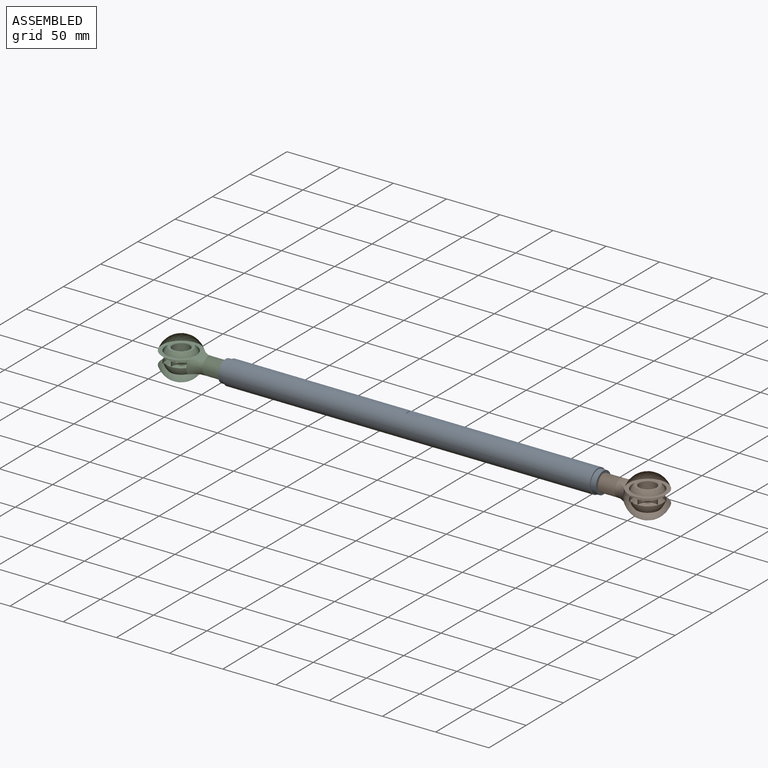
[diagram: assembled view]
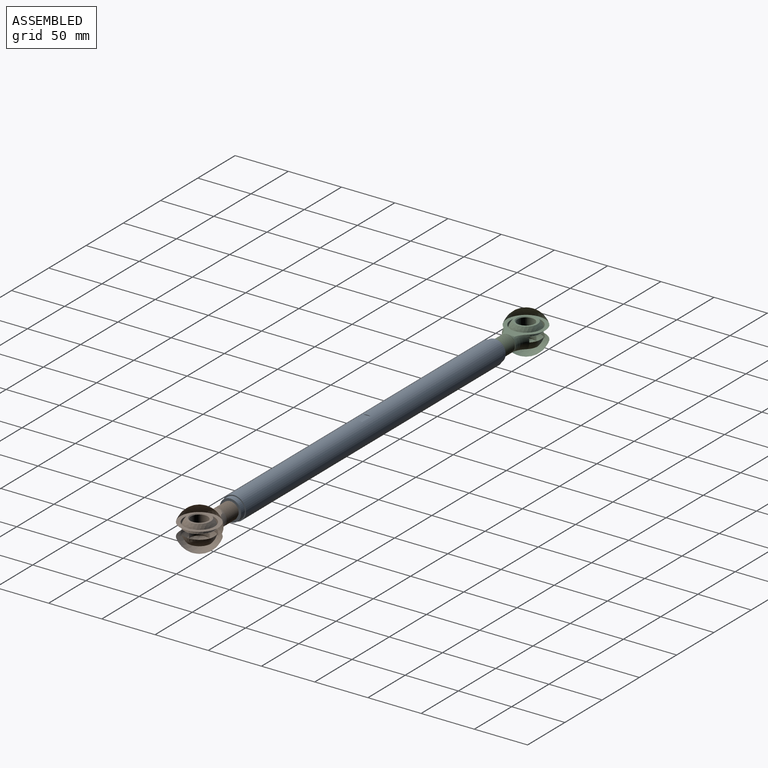
[diagram: assembled view, second angle]
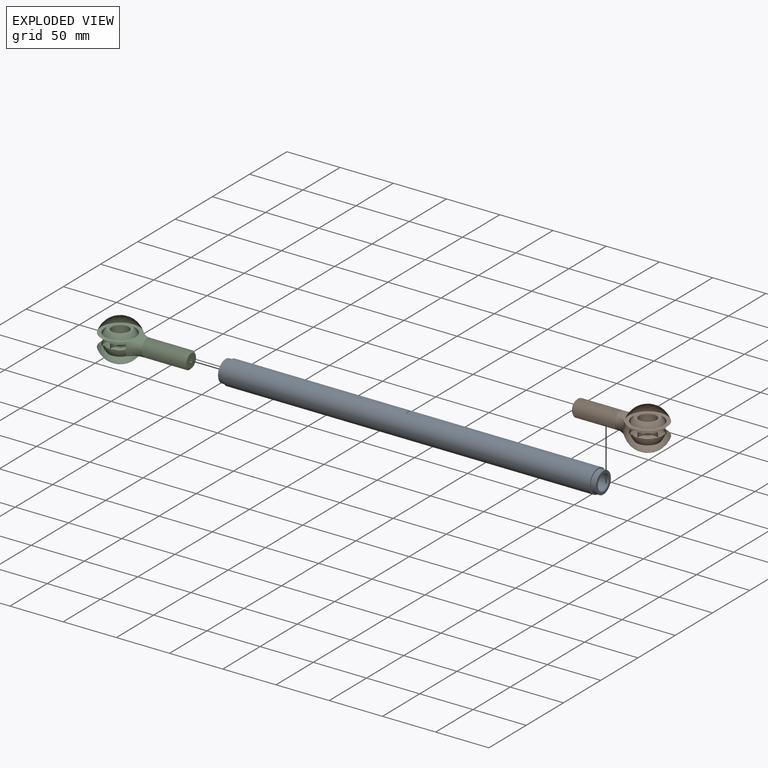
[diagram: exploded view]
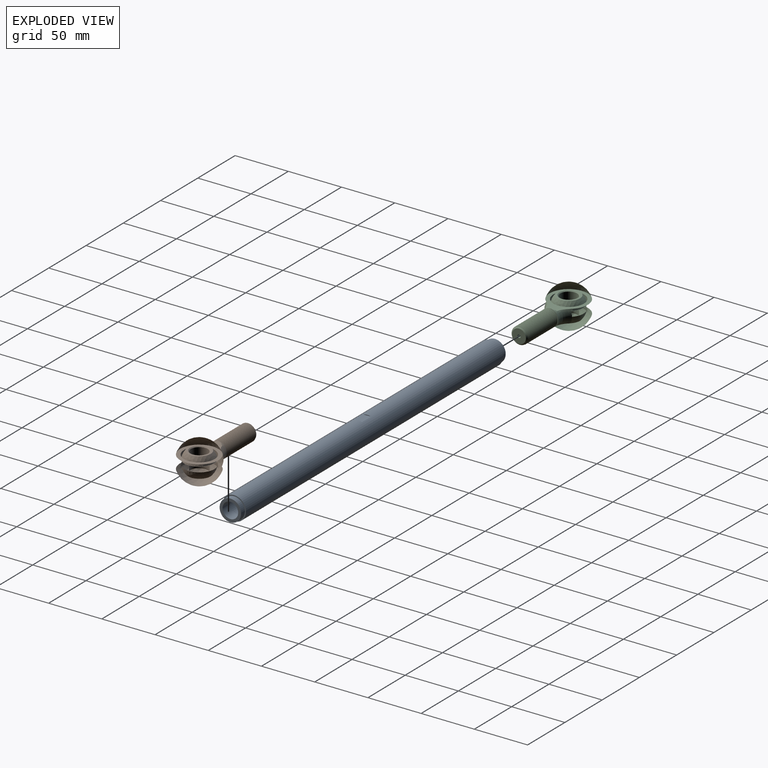
[diagram: exploded view, second angle]
ASSEMBLY  parts=3 mates=6
PART A: 18 faces, bbox 355x22.2x22.2 mm
  f0: cylinder r=11.11mm len=345mm, axis (-1,0,0), area 23910.6mm2, adj f2,f3,f12,f13,f14,f15,f16,f17
  f1: cylinder r=9.11mm len=335mm, axis (-1,0,0), area 19180.6mm2, adj f6,f10
  f2: plane 22.23x22.23mm, normal (1,0,0), area 66.7mm2, adj f0,f5
  f3: plane 22.23x22.23mm, normal (-1,0,0), area 66.7mm2, adj f0,f9
  f4: plane 20.23x20.23mm, normal (1,0,0), area 151.9mm2, adj f5,f7
  f5: cylinder r=10.11mm len=20.23mm, axis (-1,0,0), area 317.7mm2, adj f2,f4
  f6: plane 18.23x18.23mm, normal (-1,0,0), area 91.5mm2, adj f1,f7
  f7: cylinder r=7.34mm len=14.68mm, axis (1,0,0), area 461.3mm2, adj f4,f6
  f8: plane 20.23x20.23mm, normal (-1,0,0), area 151.9mm2, adj f9,f11
  f9: cylinder r=10.11mm len=20.23mm, axis (1,0,0), area 317.7mm2, adj f3,f8
  f10: plane 18.23x18.23mm, normal (1,0,0), area 91.5mm2, adj f1,f11
  f11: cylinder r=7.34mm len=14.68mm, axis (-1,0,0), area 461.3mm2, adj f8,f10
  f12: plane 7.28x0.61mm, normal (1,0,0), area 3mm2, adj f0,f14
  f13: plane 7.28x0.61mm, normal (-1,0,0), area 3mm2, adj f0,f14
  f14: plane 12x7.28mm, normal (0,0,-1), area 87.3mm2, adj f0,f12,f13
  f15: plane 7.28x0.61mm, normal (1,0,0), area 3mm2, adj f0,f16
  f16: plane 12x7.28mm, normal (0,0,1), area 87.3mm2, adj f0,f15,f17
  f17: plane 7.28x0.61mm, normal (-1,0,0), area 3mm2, adj f0,f16
PART B: 86 faces, bbox 74.1x108.1x74.1 mm
  f0: cylinder r=14.43mm len=28.86mm, axis (0,0,1), area 331.1mm2, adj f1,f2
  f1: plane 41.2x36.29mm, normal (0,0,-1), area 441.4mm2, adj f0,f3,f4,f5,f6
  f2: plane 35.07x35.07mm, normal (0,0,-1), area 32.5mm2, adj f0,f7
  f3: sphere r=19.05mm, area 3418.5mm2, adj f1,f4,f6,f8,f9
  f4: torus R=23.47mm, axis (0,-1,0), area 92.7mm2, adj f1,f3,f5,f8,f10,f11
  f5: plane 11.68x3.5mm, normal (0,0.59,-0.81), area 21.6mm2, adj f1,f4,f6
  f6: torus R=23.47mm, axis (0,-1,0), area 185.4mm2, adj f1,f3,f5,f9,f10,f12
  f7: sphere r=14.29mm, area 649.9mm2, adj f2,f13
  f8: torus R=23.47mm, axis (0,-1,0), area 92.7mm2, adj f3,f4,f9,f10,f12
  f9: plane 41.19x36.28mm, normal (0,0,1), area 441.4mm2, adj f3,f6,f8,f12,f14
  f10: plane 16.47x16.47mm, normal (0,-1,0), area 21.8mm2, adj f4,f6,f8,f15,f16,f17
  f11: cylinder r=7.94mm len=7.85mm, axis (0,1,0), area 1.4mm2, adj f4,f15,f17,f18
  f12: plane 11.68x3.5mm, normal (0,0.59,0.81), area 21.6mm2, adj f6,f8,f9
  f13: plane 21.3x21.3mm, normal (0,0,-1), area 116.8mm2, adj f7,f19
  f14: cylinder r=14.43mm len=28.86mm, axis (0,0,1), area 331.1mm2, adj f9,f20
  f15: bspline ~41.48x15.88mm, area 1421.3mm2, adj f10,f11,f16,f18,f21,f22,f23,f24
  f16: cylinder r=7.02mm len=40.78mm, axis (0,-1,0), area 224.7mm2, adj f10,f15,f17,f21
  f17: bspline ~41.84x15.87mm, area 1394.1mm2, adj f10,f11,f16,f18,f21,f22,f23,f24
  f18: cylinder r=7.94mm len=15.88mm, axis (0,1,0), area 4.4mm2, adj f11,f15,f17,f22
  f19: cone r=0mm half-angle=45deg, axis (0,0,-1), area 58.8mm2, adj f13,f79
  f20: plane 35.07x35.07mm, normal (0,0,1), area 32.5mm2, adj f14,f80
  f21: cone r=0mm half-angle=45deg, axis (0,1,0), area 33.4mm2, adj f15,f16,f17,f77,f78,f81
  f22: cylinder r=7.94mm len=15.88mm, axis (0,1,0), area 4.4mm2, adj f15,f17,f18,f23
  f23: cylinder r=7.94mm len=15.88mm, axis (0,1,0), area 4.4mm2, adj f15,f17,f22,f24
  f24: cylinder r=7.94mm len=15.88mm, axis (0,1,0), area 4.4mm2, adj f15,f17,f23,f25
  f25: cylinder r=7.94mm len=15.88mm, axis (0,1,0), area 4.4mm2, adj f15,f17,f24,f26
  f26: cylinder r=7.94mm len=15.88mm, axis (0,1,0), area 4.4mm2, adj f15,f17,f25,f27
  f27: cylinder r=7.94mm len=15.88mm, axis (0,1,0), area 4.4mm2, adj f15,f17,f26,f28
  f28: cylinder r=7.94mm len=15.88mm, axis (0,1,0), area 4.4mm2, adj f15,f17,f27,f29
  f29: cylinder r=7.94mm len=15.88mm, axis (0,1,0), area 4.4mm2, adj f15,f17,f28,f30
  f30: cylinder r=7.94mm len=15.88mm, axis (0,1,0), area 4.4mm2, adj f15,f17,f29,f31
  f31: cylinder r=7.94mm len=15.88mm, axis (0,1,0), area 4.4mm2, adj f15,f17,f30,f32
  f32: cylinder r=7.94mm len=15.88mm, axis (0,1,0), area 4.4mm2, adj f15,f17,f31,f33
  f33: cylinder r=7.94mm len=15.88mm, axis (0,1,0), area 4.4mm2, adj f15,f17,f32,f34
  f34: cylinder r=7.94mm len=15.88mm, axis (0,1,0), area 4.4mm2, adj f15,f17,f33,f35
  f35: cylinder r=7.94mm len=15.88mm, axis (0,1,0), area 4.4mm2, adj f15,f17,f34,f36
  f36: cylinder r=7.94mm len=15.88mm, axis (0,1,0), area 4.4mm2, adj f15,f17,f35,f37
  f37: cylinder r=7.94mm len=15.88mm, axis (0,1,0), area 4.4mm2, adj f15,f17,f36,f38
  f38: cylinder r=7.94mm len=15.88mm, axis (0,1,0), area 4.4mm2, adj f15,f17,f37,f39
  f39: cylinder r=7.94mm len=15.88mm, axis (0,1,0), area 4.4mm2, adj f15,f17,f38,f40
  f40: cylinder r=7.94mm len=15.88mm, axis (0,1,0), area 4.4mm2, adj f15,f17,f39,f41
  f41: cylinder r=7.94mm len=15.88mm, axis (0,1,0), area 4.4mm2, adj f15,f17,f40,f42
  f42: cylinder r=7.94mm len=15.88mm, axis (0,1,0), area 4.4mm2, adj f15,f17,f41,f43
  f43: cylinder r=7.94mm len=15.88mm, axis (0,1,0), area 4.4mm2, adj f15,f17,f42,f44
  f44: cylinder r=7.94mm len=15.88mm, axis (0,1,0), area 4.4mm2, adj f15,f17,f43,f45
  f45: cylinder r=7.94mm len=15.88mm, axis (0,1,0), area 4.4mm2, adj f15,f17,f44,f46
  f46: cylinder r=7.94mm len=15.88mm, axis (0,1,0), area 4.4mm2, adj f15,f17,f45,f47
  f47: cylinder r=7.94mm len=15.88mm, axis (0,1,0), area 4.4mm2, adj f15,f17,f46,f48
  f48: cylinder r=7.94mm len=15.88mm, axis (0,1,0), area 4.4mm2, adj f15,f17,f47,f49
  f49: cylinder r=7.94mm len=15.88mm, axis (0,1,0), area 4.4mm2, adj f15,f17,f48,f50
  f50: cylinder r=7.94mm len=15.88mm, axis (0,1,0), area 4.4mm2, adj f15,f17,f49,f51
  f51: cylinder r=7.94mm len=15.88mm, axis (0,1,0), area 4.4mm2, adj f15,f17,f50,f52
  f52: cylinder r=7.94mm len=15.88mm, axis (0,1,0), area 4.4mm2, adj f15,f17,f51,f53
  f53: cylinder r=7.94mm len=15.88mm, axis (0,1,0), area 4.4mm2, adj f15,f17,f52,f54
  f54: cylinder r=7.94mm len=15.88mm, axis (0,1,0), area 4.4mm2, adj f15,f17,f53,f55
  f55: cylinder r=7.94mm len=15.88mm, axis (0,1,0), area 4.4mm2, adj f15,f17,f54,f56
  f56: cylinder r=7.94mm len=15.88mm, axis (0,1,0), area 4.4mm2, adj f15,f17,f55,f57
  f57: cylinder r=7.94mm len=15.88mm, axis (0,1,0), area 4.4mm2, adj f15,f17,f56,f58
  f58: cylinder r=7.94mm len=15.88mm, axis (0,1,0), area 4.4mm2, adj f15,f17,f57,f59
  f59: cylinder r=7.94mm len=15.88mm, axis (0,1,0), area 4.4mm2, adj f15,f17,f58,f60
  f60: cylinder r=7.94mm len=15.88mm, axis (0,1,0), area 4.4mm2, adj f15,f17,f59,f61
  f61: cylinder r=7.94mm len=15.88mm, axis (0,1,0), area 4.4mm2, adj f15,f17,f60,f62
  f62: cylinder r=7.94mm len=15.88mm, axis (0,1,0), area 4.4mm2, adj f15,f17,f61,f63
  f63: cylinder r=7.94mm len=15.88mm, axis (0,1,0), area 4.4mm2, adj f15,f17,f62,f64
  f64: cylinder r=7.94mm len=15.88mm, axis (0,1,0), area 4.4mm2, adj f15,f17,f63,f65
  f65: cylinder r=7.94mm len=15.88mm, axis (0,1,0), area 4.4mm2, adj f15,f17,f64,f66
  f66: cylinder r=7.94mm len=15.88mm, axis (0,1,0), area 4.4mm2, adj f15,f17,f65,f67
  f67: cylinder r=7.94mm len=15.88mm, axis (0,1,0), area 4.4mm2, adj f15,f17,f66,f68
  f68: cylinder r=7.94mm len=15.88mm, axis (0,1,0), area 4.4mm2, adj f15,f17,f67,f69
  f69: cylinder r=7.94mm len=15.88mm, axis (0,1,0), area 4.4mm2, adj f15,f17,f68,f70
  f70: cylinder r=7.94mm len=15.88mm, axis (0,1,0), area 4.4mm2, adj f15,f17,f69,f71
  f71: cylinder r=7.94mm len=15.88mm, axis (0,1,0), area 4.4mm2, adj f15,f17,f70,f72
  f72: cylinder r=7.94mm len=15.88mm, axis (0,1,0), area 4.4mm2, adj f15,f17,f71,f73
  f73: cylinder r=7.94mm len=15.88mm, axis (0,1,0), area 4.4mm2, adj f15,f17,f72,f74
  f74: cylinder r=7.94mm len=15.88mm, axis (0,1,0), area 4.4mm2, adj f15,f17,f73,f75
  f75: cylinder r=7.94mm len=15.88mm, axis (0,1,0), area 4.4mm2, adj f15,f17,f74,f76
  f76: cylinder r=7.94mm len=15.88mm, axis (0,1,0), area 4.4mm2, adj f15,f17,f75,f78
  f77: cone r=0mm half-angle=45deg, axis (0,1,0), area 26.4mm2, adj f17,f21,f81
  f78: cylinder r=7.94mm len=5.61mm, axis (0,1,0), area 0.6mm2, adj f17,f21,f76
  f79: cylinder r=7.94mm len=17.46mm, axis (0,0,1), area 870.9mm2, adj f19,f82
  f80: sphere r=14.29mm, area 1077.4mm2, adj f20,f83
  f81: plane 13.05x13.05mm, normal (0,-1,0), area 126.7mm2, adj f21,f77,f84
  f82: cone r=0mm half-angle=45deg, axis (0,0,1), area 58.8mm2, adj f79,f83
  f83: plane 44.63x44.63mm, normal (0,0,1), area 116.8mm2, adj f80,f82
  f84: cylinder r=1.5mm len=20mm, axis (0,-1,0), area 188.5mm2, adj f81,f85
  f85: plane 3x3mm, normal (0,-1,0), area 7.1mm2, adj f84
PART C: same geometry as B
PLACE A at identity fixed
PLACE B rot(axis=(0,0,-1),90deg) t=(193.78,0,0)mm
PLACE C rot(axis=(0.71,-0.71,0),180deg) t=(-193.78,0,0)mm
MATE parallel B.f0 <-> A.f16  axis (0,0,1) through (219.18,0,9.52)mm
MATE planar A.f0 <-> B.f84  axis (1,0,0) through (177.5,0,0)mm
MATE cylindrical A.f7 <-> B.f84  axis (1,0,0) through (177.5,0,0)mm
MATE planar C.f84 <-> A.f5  axis (1,0,0) through (-152.5,0,0)mm
MATE parallel C.f0 <-> A.f16  axis (0,0,1) through (-219.18,0,9.53)mm
MATE cylindrical C.f84 <-> A.f0  axis (1,0,0) through (-152.5,0,0)mm
